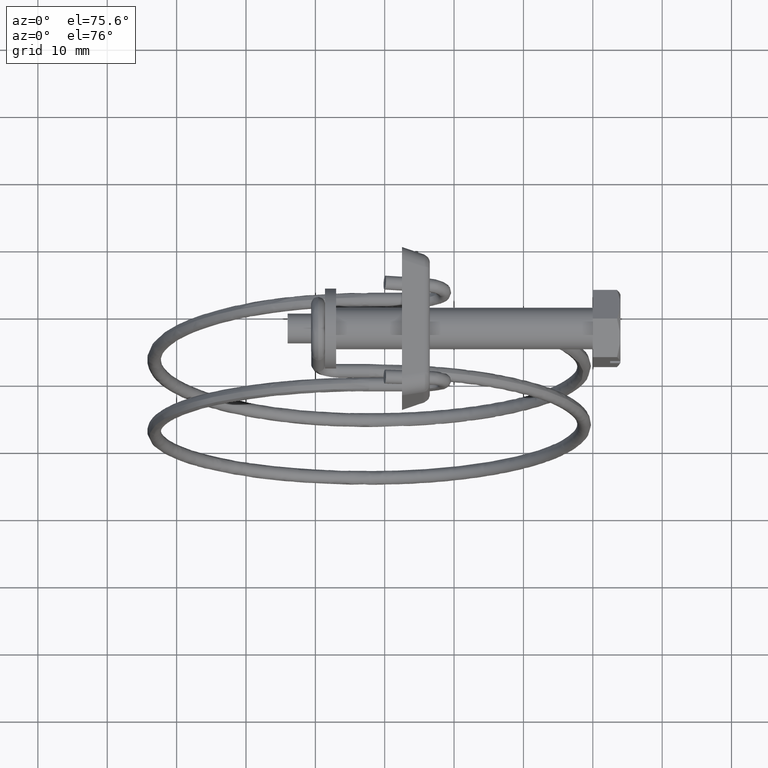
[diagram: clean part render]
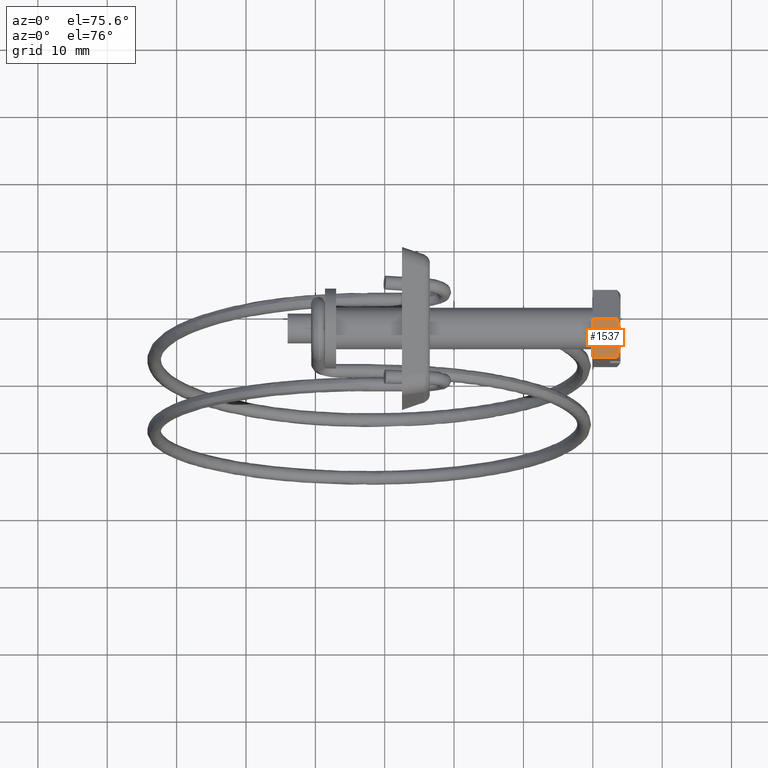
[diagram: same view with one face highlighted and labeled with its STEP entity id]
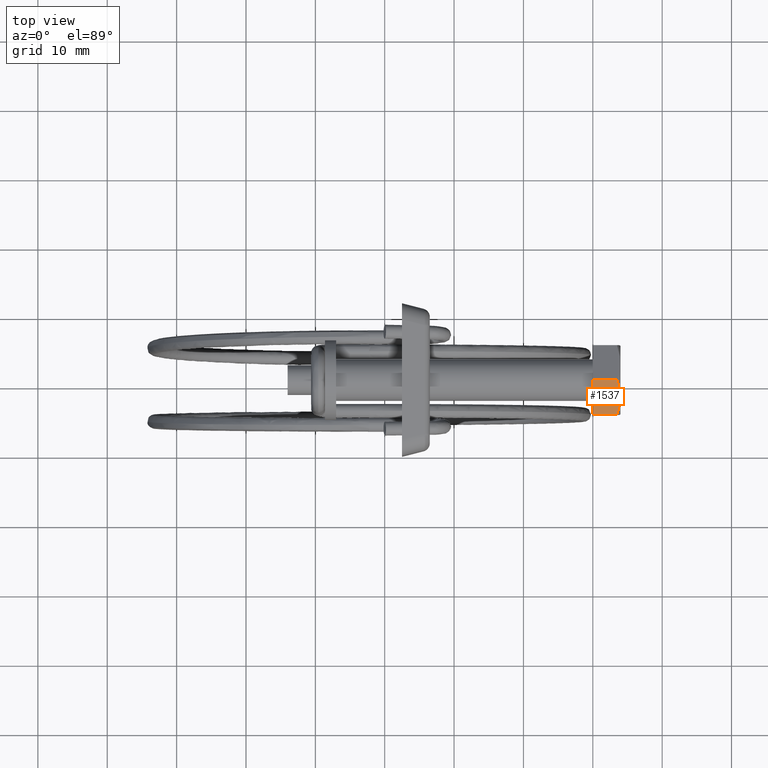
[diagram: same view with one face highlighted and labeled with its STEP entity id]
A machine part, auxiliary view. The second image highlights one B-rep face of the part: STEP entity #1537.
A second angle (top view) of the same face is appended — the face is thin or edge-on in the first view.
In plain terms, the highlighted face is a freeform B-spline surface patch.
Its self-contained STEP definition (entity closure, byte-faithful):
#1321=CARTESIAN_POINT('',(0.0,-5.000000000000110,2.886751000000115));
#1322=VERTEX_POINT('',#1321);
#1323=CARTESIAN_POINT('',(0.0,0.0,5.773503000000120));
#1324=VERTEX_POINT('',#1323);
#1325=CARTESIAN_POINT('',(0.0,-5.000000000000110,2.886751000000115));
#1326=CARTESIAN_POINT('',(0.0,0.0,5.773503000000120));
#1327=QUASI_UNIFORM_CURVE('',1,(#1325,#1326),.UNSPECIFIED.,.F.,.U.);
#1328=EDGE_CURVE('',#1322,#1324,#1327,.T.);
#1378=CARTESIAN_POINT('',(3.495681814373700,-5.000000000000110,2.886751000000115));
#1379=VERTEX_POINT('',#1378);
#1391=CARTESIAN_POINT('',(3.495681814373700,-5.000000000000110,2.886751000000115));
#1392=CARTESIAN_POINT('',(0.0,-5.000000000000110,2.886751000000115));
#1393=QUASI_UNIFORM_CURVE('',1,(#1391,#1392),.UNSPECIFIED.,.F.,.U.);
#1394=EDGE_CURVE('',#1379,#1322,#1393,.T.);
#1477=CARTESIAN_POINT('',(3.495681536623325,6.103433E-016,5.773503000000120));
#1478=VERTEX_POINT('',#1477);
#1500=CARTESIAN_POINT('',(3.495681536623325,6.103433E-016,5.773503000000120));
#1501=CARTESIAN_POINT('',(0.0,0.0,5.773503000000120));
#1502=QUASI_UNIFORM_CURVE('',1,(#1500,#1501),.UNSPECIFIED.,.F.,.U.);
#1503=EDGE_CURVE('',#1478,#1324,#1502,.T.);
#1508=CARTESIAN_POINT('',(-0.196916070453834,0.249750831026995,5.917694692243601));
#1509=CARTESIAN_POINT('',(-0.196916070453834,-5.249749710802925,2.742556954518055));
#1510=CARTESIAN_POINT('',(4.139180001913432,0.249750831026995,5.917694692243601));
#1511=CARTESIAN_POINT('',(4.139180001913432,-5.249749710802925,2.742556954518055));
#1512=B_SPLINE_SURFACE_WITH_KNOTS('',1,1,((#1508,#1510),(#1509,#1511)),.UNSPECIFIED.,.F.,.F.,.U.,(2,2),(2,2),(0.0,6.350276046213776),(0.0,4.336096072367266),.UNSPECIFIED.);
#1513=CARTESIAN_POINT('',(3.495681536623325,6.103433E-016,5.773503000000120));
#1514=CARTESIAN_POINT('',(3.631749038599125,-0.408202285038183,5.537827247452418));
#1515=CARTESIAN_POINT('',(3.743893413915199,-0.819380890193874,5.300433115294342));
#1516=CARTESIAN_POINT('',(3.860410759078715,-1.442580792549924,4.940628402389121));
#1517=CARTESIAN_POINT('',(3.890612672274843,-1.651388663478873,4.820073094585147));
#1518=CARTESIAN_POINT('',(3.931468634914104,-2.071436390961804,4.577558371103793));
#1519=CARTESIAN_POINT('',(3.942105792498638,-2.282678349062935,4.455597742097323));
#1520=CARTESIAN_POINT('',(3.942340228202794,-2.601497202100163,4.271527549768743));
#1521=CARTESIAN_POINT('',(3.939790267492717,-2.708308700746892,4.209859888300455));
#1522=CARTESIAN_POINT('',(3.929516157872345,-2.920962069454457,4.087084380815796));
#1523=CARTESIAN_POINT('',(3.921803877302504,-3.026919334326902,4.025909911558786));
#1524=CARTESIAN_POINT('',(3.891275711682841,-3.343730833925420,3.842998665540987));
#1525=CARTESIAN_POINT('',(3.861051222392978,-3.553522294746899,3.721875481719122));
#1526=CARTESIAN_POINT('',(3.744340626382618,-4.179161617348235,3.360662368559519));
#1527=CARTESIAN_POINT('',(3.631918845932657,-4.591288973032123,3.122720474904489));
#1528=CARTESIAN_POINT('',(3.495681814373700,-5.000000000000110,2.886751000000115));
#1529=B_SPLINE_CURVE_WITH_KNOTS('',3,(#1513,#1514,#1515,#1516,#1517,#1518,#1519,#1520,#1521,#1522,#1523,#1524,#1525,#1526,#1527,#1528),.UNSPECIFIED.,.F.,.U.,(4,2,2,2,2,2,2,4),(0.0,0.250000000000000,0.375000000000000,0.500000000000001,0.562500000000001,0.625000000000001,0.750000000000000,1.0),.UNSPECIFIED.);
#1530=EDGE_CURVE('',#1478,#1379,#1529,.T.);
#1531=ORIENTED_EDGE('',*,*,#1530,.F.);
#1532=ORIENTED_EDGE('',*,*,#1503,.T.);
#1533=ORIENTED_EDGE('',*,*,#1328,.F.);
#1534=ORIENTED_EDGE('',*,*,#1394,.F.);
#1535=EDGE_LOOP('',(#1531,#1532,#1533,#1534));
#1536=FACE_OUTER_BOUND('',#1535,.T.);
#1537=ADVANCED_FACE('',(#1536),#1512,.T.);